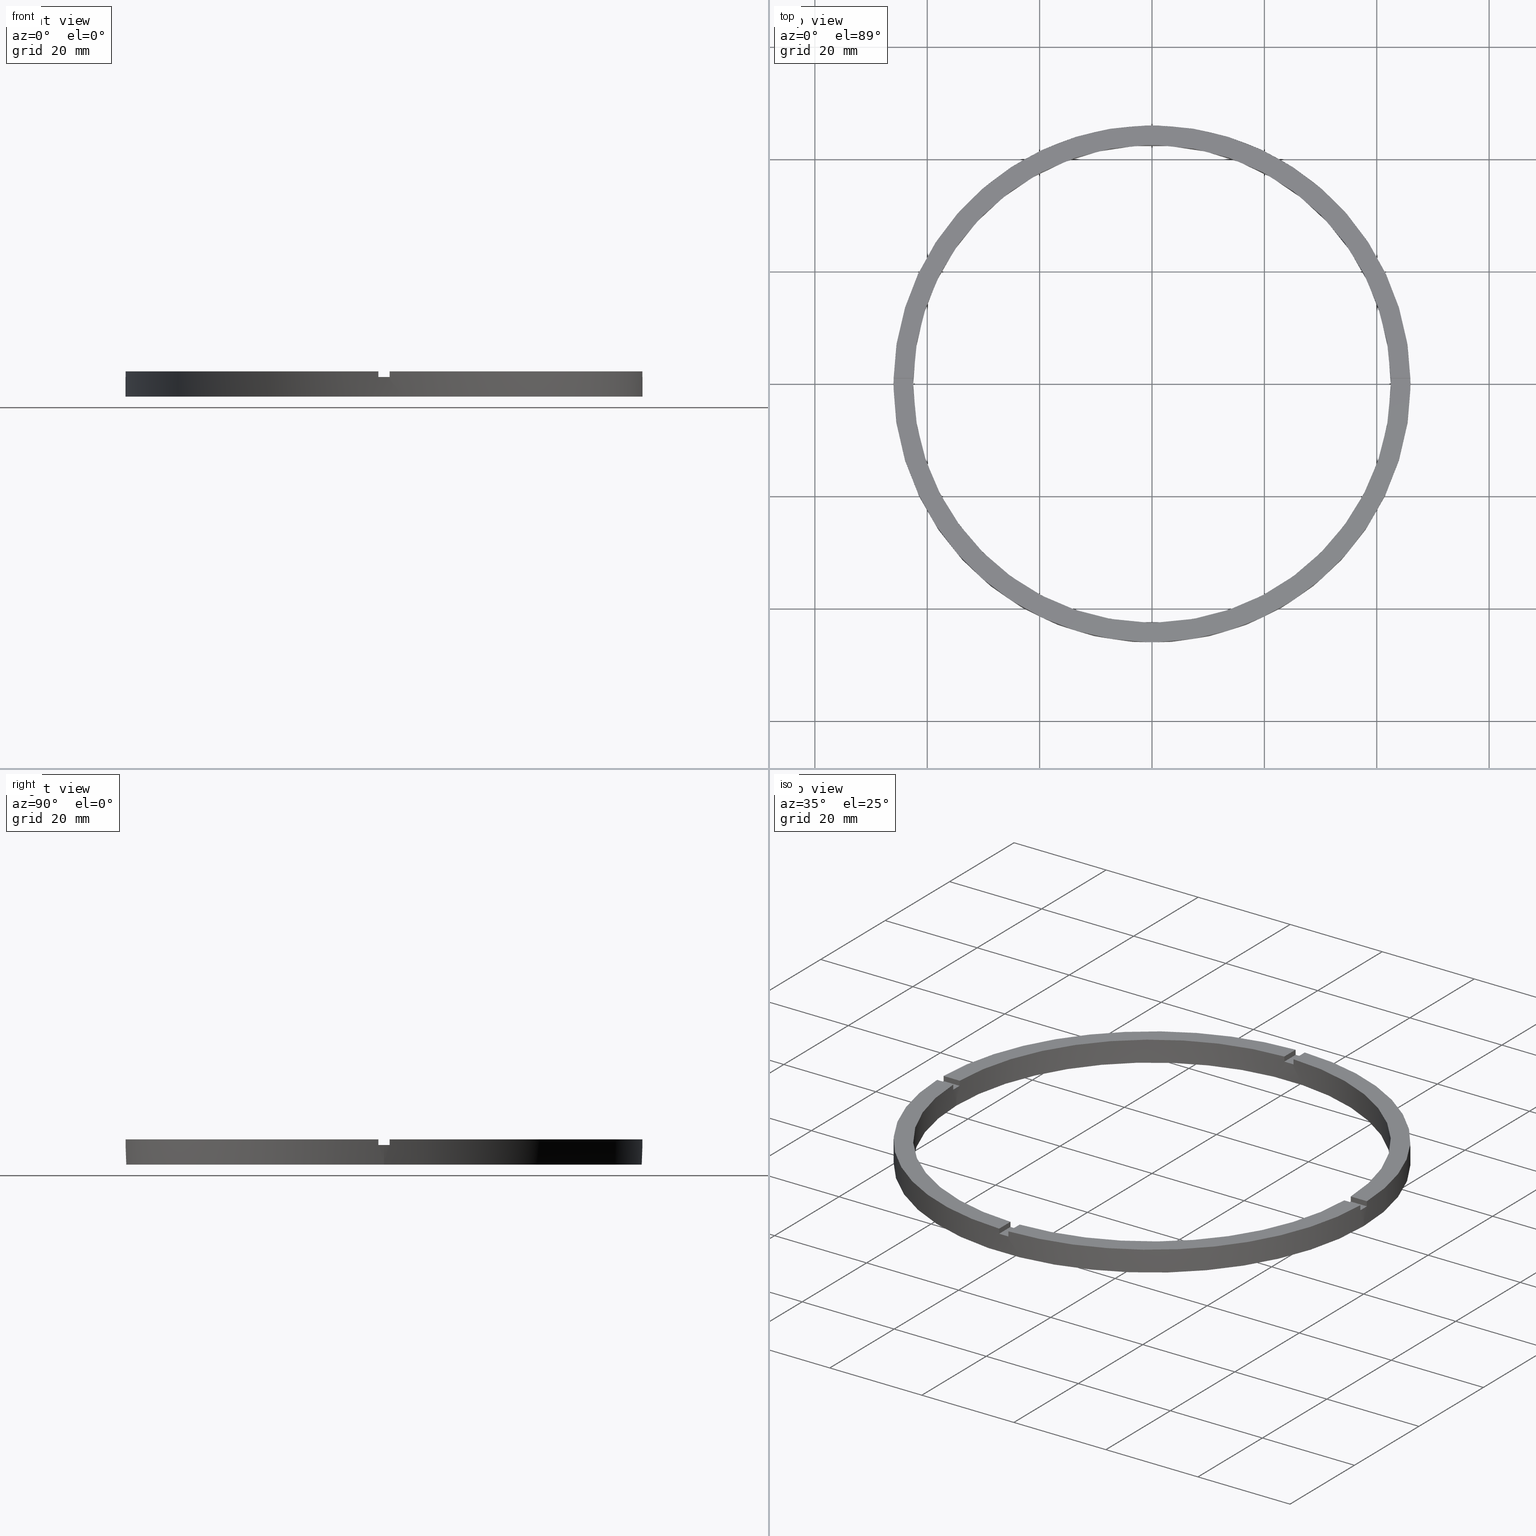
[diagram: canonical four-view strip — front | top / right | iso, engineering-drawing reading convention]
A machine part, canonical four-view strip (front | top / right | iso — engineering-drawing reading convention). The complete STEP part file that produces these views, byte-faithful:
ISO-10303-21;
HEADER;
FILE_DESCRIPTION (( 'STEP AP203' ),
    '1' );
FILE_NAME ('514189.step',
    '2024-12-26T02:46:16',
    ( 'MSI' ),
    ( '' ),
    'SwSTEP 2.0',
    'SolidWorks 2020',
    '' );
FILE_SCHEMA (( 'CONFIG_CONTROL_DESIGN' ));
ENDSEC;

DATA;
#1 = CIRCLE ( 'NONE', #166, 46.00000000000000000 ) ;
#2 = ORIENTED_EDGE ( 'NONE', *, *, #100, .F. ) ;
#3 = LINE ( 'NONE', #771, #769 ) ;
#4 = EDGE_LOOP ( 'NONE', ( #2, #557 ) ) ;
#5 = AXIS2_PLACEMENT_3D ( 'NONE', #574, #190, #415 ) ;
#6 = EDGE_CURVE ( 'NONE', #563, #491, #720, .T. ) ;
#7 = CC_DESIGN_DATE_AND_TIME_ASSIGNMENT ( #66, #605, ( #330 ) ) ;
#8 = ORIENTED_EDGE ( 'NONE', *, *, #451, .T. ) ;
#9 = DIRECTION ( 'NONE',  ( -1.301042606982605074E-16, 1.000000000000000000, 0.000000000000000000 ) ) ;
#10 = ORIENTED_EDGE ( 'NONE', *, *, #729, .F. ) ;
#11 = VERTEX_POINT ( 'NONE', #335 ) ;
#12 = CARTESIAN_POINT ( 'NONE',  ( 0.000000000000000000, 0.000000000000000000, 3.499999999999999556 ) ) ;
#13 = CARTESIAN_POINT ( 'NONE',  ( 0.000000000000000000, 0.000000000000000000, 0.000000000000000000 ) ) ;
#14 = AXIS2_PLACEMENT_3D ( 'NONE', #44, #211, #638 ) ;
#15 = EDGE_LOOP ( 'NONE', ( #481, #432, #734, #174, #170, #514, #721, #530, #206, #214, #464, #547 ) ) ;
#16 = AXIS2_PLACEMENT_3D ( 'NONE', #200, #385, #434 ) ;
#17 = ORIENTED_EDGE ( 'NONE', *, *, #749, .T. ) ;
#18 = CARTESIAN_POINT ( 'NONE',  ( 0.000000000000000000, 0.000000000000000000, 4.500000000000000000 ) ) ;
#19 = ORIENTED_EDGE ( 'NONE', *, *, #408, .T. ) ;
#20 = ORIENTED_EDGE ( 'NONE', *, *, #604, .T. ) ;
#21 = SECURITY_CLASSIFICATION_LEVEL ( 'unclassified' ) ;
#22 = EDGE_CURVE ( 'NONE', #302, #444, #480, .T. ) ;
#23 = VERTEX_POINT ( 'NONE', #419 ) ;
#24 = CARTESIAN_POINT ( 'NONE',  ( -36.00000000000018474, -1.000000000000028200, 3.499999999999999556 ) ) ;
#25 = EDGE_LOOP ( 'NONE', ( #509, #768, #185, #10, #259, #702 ) ) ;
#26 = VERTEX_POINT ( 'NONE', #512 ) ;
#27 = PERSON_AND_ORGANIZATION_ROLE ( 'creator' ) ;
#28 = APPROVAL ( #519, 'δָ��' ) ;
#29 = DIRECTION ( 'NONE',  ( -1.000000000000000000, -6.505213034913025371E-17, -0.000000000000000000 ) ) ;
#30 = DIRECTION ( 'NONE',  ( 0.000000000000000000, 0.000000000000000000, 1.000000000000000000 ) ) ;
#31 = VERTEX_POINT ( 'NONE', #526 ) ;
#32 = COORDINATED_UNIVERSAL_TIME_OFFSET ( 8, 0, .AHEAD. ) ;
#33 = ADVANCED_FACE ( 'NONE', ( #454 ), #427, .F. ) ;
#34 = CARTESIAN_POINT ( 'NONE',  ( -1.000000000000158540, -42.48823366533375179, 4.500000000000000000 ) ) ;
#35 = PERSON_AND_ORGANIZATION ( #370, #314 ) ;
#36 = VERTEX_POINT ( 'NONE', #619 ) ;
#37 = LOCAL_TIME ( 10, 46, 16.00000000000000000, #32 ) ;
#38 = CALENDAR_DATE ( 2024, 26, 12 ) ;
#39 = DIRECTION ( 'NONE',  ( 1.000000000000000000, 0.000000000000000000, 0.000000000000000000 ) ) ;
#40 = ORIENTED_EDGE ( 'NONE', *, *, #358, .T. ) ;
#41 = EDGE_CURVE ( 'NONE', #220, #280, #225, .T. ) ;
#42 = EDGE_CURVE ( 'NONE', #695, #687, #691, .T. ) ;
#43 = PERSON_AND_ORGANIZATION_ROLE ( 'design_owner' ) ;
#44 = CARTESIAN_POINT ( 'NONE',  ( 0.000000000000000000, 0.000000000000000000, 4.500000000000000000 ) ) ;
#45 = CARTESIAN_POINT ( 'NONE',  ( 42.48823366533375179, -1.000000000000156097, 4.500000000000000000 ) ) ;
#46 = DIRECTION ( 'NONE',  ( -0.000000000000000000, -0.000000000000000000, -1.000000000000000000 ) ) ;
#47 = LOCAL_TIME ( 10, 46, 16.00000000000000000, #67 ) ;
#48 = COORDINATED_UNIVERSAL_TIME_OFFSET ( 8, 0, .AHEAD. ) ;
#49 = LOCAL_TIME ( 10, 46, 16.00000000000000000, #48 ) ;
#50 = CALENDAR_DATE ( 2024, 26, 12 ) ;
#51 = DIRECTION ( 'NONE',  ( 1.000000000000000000, 6.505213034913025371E-17, 0.000000000000000000 ) ) ;
#52 = AXIS2_PLACEMENT_3D ( 'NONE', #253, #359, #714 ) ;
#53 = AXIS2_PLACEMENT_3D ( 'NONE', #565, #123, #349 ) ;
#54 = APPROVAL_DATE_TIME ( #566, #397 ) ;
#55 = EDGE_CURVE ( 'NONE', #556, #199, #435, .T. ) ;
#56 = DIRECTION ( 'NONE',  ( -1.000000000000000000, -1.951563910473907735E-16, 0.000000000000000000 ) ) ;
#57 = CARTESIAN_POINT ( 'NONE',  ( 45.98912915026767934, 0.9999999999998441247, 3.499999999999999556 ) ) ;
#58 = DIRECTION ( 'NONE',  ( 1.000000000000000000, 0.000000000000000000, 0.000000000000000000 ) ) ;
#59 = AXIS2_PLACEMENT_3D ( 'NONE', #357, #707, #9 ) ;
#60 = DIRECTION ( 'NONE',  ( -1.000000000000000000, 0.000000000000000000, 0.000000000000000000 ) ) ;
#61 = CARTESIAN_POINT ( 'NONE',  ( 42.48823366533375889, 0.9999999999998439026, 4.500000000000000000 ) ) ;
#62 = CARTESIAN_POINT ( 'NONE',  ( 0.000000000000000000, 0.000000000000000000, 0.000000000000000000 ) ) ;
#63 = AXIS2_PLACEMENT_3D ( 'NONE', #283, #46, #389 ) ;
#64 = PERSON_AND_ORGANIZATION ( #370, #314 ) ;
#65 = APPROVAL_DATE_TIME ( #580, #28 ) ;
#66 = DATE_AND_TIME ( #584, #581 ) ;
#67 = COORDINATED_UNIVERSAL_TIME_OFFSET ( 8, 0, .AHEAD. ) ;
#68 = EDGE_CURVE ( 'NONE', #690, #423, #693, .T. ) ;
#69 = CARTESIAN_POINT ( 'NONE',  ( 46.00000000000000000, 5.633375276077824704E-15, 0.000000000000000000 ) ) ;
#70 = DIRECTION ( 'NONE',  ( -0.000000000000000000, -0.000000000000000000, -1.000000000000000000 ) ) ;
#71 = DIRECTION ( 'NONE',  ( 1.000000000000000000, 0.000000000000000000, 0.000000000000000000 ) ) ;
#72 = EDGE_CURVE ( 'NONE', #764, #687, #484, .T. ) ;
#73 = DIRECTION ( 'NONE',  ( 0.000000000000000000, 0.000000000000000000, 1.000000000000000000 ) ) ;
#74 = EDGE_CURVE ( 'NONE', #682, #36, #197, .T. ) ;
#75 = DIRECTION ( 'NONE',  ( 0.000000000000000000, 0.000000000000000000, 1.000000000000000000 ) ) ;
#76 = DIRECTION ( 'NONE',  ( 1.000000000000000000, 0.000000000000000000, 0.000000000000000000 ) ) ;
#77 = CARTESIAN_POINT ( 'NONE',  ( 0.9999999999999737987, 36.00000000000000000, 3.499999999999999556 ) ) ;
#78 = AXIS2_PLACEMENT_3D ( 'NONE', #726, #363, #71 ) ;
#79 = AXIS2_PLACEMENT_3D ( 'NONE', #85, #136, #742 ) ;
#80 = CC_DESIGN_APPROVAL ( #159, ( #330 ) ) ;
#81 = CARTESIAN_POINT ( 'NONE',  ( 46.00000000000000000, 5.633375276077824704E-15, 3.499999999999999556 ) ) ;
#82 = ADVANCED_FACE ( 'NONE', ( #717 ), #286, .T. ) ;
#83 = PERSON_AND_ORGANIZATION_ROLE ( 'classification_officer' ) ;
#84 = EDGE_CURVE ( 'NONE', #213, #563, #741, .T. ) ;
#85 = CARTESIAN_POINT ( 'NONE',  ( 0.000000000000000000, 0.000000000000000000, 4.500000000000000000 ) ) ;
#86 = DIRECTION ( 'NONE',  ( 1.000000000000000000, 0.000000000000000000, -0.000000000000000000 ) ) ;
#87 = ADVANCED_FACE ( 'NONE', ( #182 ), #355, .F. ) ;
#88 = CC_DESIGN_APPROVAL ( #397, ( #591 ) ) ;
#89 = AXIS2_PLACEMENT_3D ( 'NONE', #173, #364, #401 ) ;
#90 = FACE_OUTER_BOUND ( 'NONE', #737, .T. ) ;
#91 = DIRECTION ( 'NONE',  ( 1.000000000000000000, 1.951563910473907735E-16, 0.000000000000000000 ) ) ;
#92 = LINE ( 'NONE', #331, #343 ) ;
#93 = APPROVAL_ROLE ( '' ) ;
#94 = ADVANCED_FACE ( 'NONE', ( #697 ), #696, .F. ) ;
#95 = CARTESIAN_POINT ( 'NONE',  ( 0.000000000000000000, 0.000000000000000000, 0.000000000000000000 ) ) ;
#96 = EDGE_CURVE ( 'NONE', #295, #36, #179, .T. ) ;
#97 = EDGE_CURVE ( 'NONE', #279, #544, #700, .T. ) ;
#98 = CARTESIAN_POINT ( 'NONE',  ( -46.00000000000000000, 0.000000000000000000, 0.000000000000000000 ) ) ;
#99 = CARTESIAN_POINT ( 'NONE',  ( 35.99999999999999289, -1.000000000000156541, 3.499999999999999556 ) ) ;
#100 = EDGE_CURVE ( 'NONE', #544, #279, #443, .T. ) ;
#101 = CARTESIAN_POINT ( 'NONE',  ( 0.000000000000000000, 0.000000000000000000, 3.499999999999999556 ) ) ;
#102 = EDGE_CURVE ( 'NONE', #302, #747, #701, .T. ) ;
#103 = CARTESIAN_POINT ( 'NONE',  ( -1.000000000000157874, -45.98912915026767223, 4.500000000000000000 ) ) ;
#104 = CARTESIAN_POINT ( 'NONE',  ( -45.98912915026767223, 0.9999999999999699130, 4.500000000000000000 ) ) ;
#105 = AXIS2_PLACEMENT_3D ( 'NONE', #296, #392, #453 ) ;
#106 = DIRECTION ( 'NONE',  ( 1.000000000000000000, 0.000000000000000000, 0.000000000000000000 ) ) ;
#107 = VECTOR ( 'NONE', #599, 1000.000000000000000 ) ;
#108 = CARTESIAN_POINT ( 'NONE',  ( -42.48823366533375889, 0.9999999999999705791, 4.500000000000000000 ) ) ;
#109 = AXIS2_PLACEMENT_3D ( 'NONE', #243, #303, #573 ) ;
#110 = LINE ( 'NONE', #154, #616 ) ;
#111 = DIRECTION ( 'NONE',  ( 0.000000000000000000, 0.000000000000000000, 1.000000000000000000 ) ) ;
#112 = DIRECTION ( 'NONE',  ( -0.000000000000000000, 0.000000000000000000, 1.000000000000000000 ) ) ;
#113 = CYLINDRICAL_SURFACE ( 'NONE', #156, 46.00000000000000000 ) ;
#114 = CIRCLE ( 'NONE', #78, 42.50000000000000711 ) ;
#115 = VECTOR ( 'NONE', #781, 1000.000000000000000 ) ;
#116 = DIRECTION ( 'NONE',  ( 1.000000000000000000, 1.951563910473907735E-16, -0.000000000000000000 ) ) ;
#117 = FACE_OUTER_BOUND ( 'NONE', #25, .T. ) ;
#118 = PLANE ( 'NONE',  #59 ) ;
#119 = FACE_OUTER_BOUND ( 'NONE', #300, .T. ) ;
#120 = CIRCLE ( 'NONE', #223, 42.50000000000000711 ) ;
#121 = LINE ( 'NONE', #215, #379 ) ;
#122 = AXIS2_PLACEMENT_3D ( 'NONE', #367, #147, #240 ) ;
#123 = DIRECTION ( 'NONE',  ( 0.000000000000000000, 0.000000000000000000, 1.000000000000000000 ) ) ;
#124 = VECTOR ( 'NONE', #235, 1000.000000000000000 ) ;
#125 = LINE ( 'NONE', #399, #382 ) ;
#126 = VECTOR ( 'NONE', #344, 1000.000000000000000 ) ;
#127 = EDGE_CURVE ( 'NONE', #213, #196, #748, .T. ) ;
#128 = DIRECTION ( 'NONE',  ( -0.000000000000000000, -0.000000000000000000, -1.000000000000000000 ) ) ;
#129 = CYLINDRICAL_SURFACE ( 'NONE', #694, 46.00000000000000000 ) ;
#130 = CYLINDRICAL_SURFACE ( 'NONE', #135, 42.50000000000000711 ) ;
#131 = VECTOR ( 'NONE', #70, 1000.000000000000000 ) ;
#132 = MANIFOLD_SOLID_BREP ( '�г�-����1', #708 ) ;
#133 = CARTESIAN_POINT ( 'NONE',  ( 0.9999999999998421263, -45.98912915026767934, 4.500000000000000000 ) ) ;
#134 = CARTESIAN_POINT ( 'NONE',  ( -1.000000000000157874, -45.98912915026767223, 4.500000000000000000 ) ) ;
#135 = AXIS2_PLACEMENT_3D ( 'NONE', #529, #381, #60 ) ;
#136 = DIRECTION ( 'NONE',  ( 0.000000000000000000, 0.000000000000000000, 1.000000000000000000 ) ) ;
#137 = PLANE ( 'NONE',  #270 ) ;
#138 = AXIS2_PLACEMENT_3D ( 'NONE', #442, #394, #626 ) ;
#139 = DIRECTION ( 'NONE',  ( 0.000000000000000000, 0.000000000000000000, 1.000000000000000000 ) ) ;
#140 = CARTESIAN_POINT ( 'NONE',  ( 0.000000000000000000, 0.000000000000000000, 3.499999999999999556 ) ) ;
#141 = EDGE_CURVE ( 'NONE', #461, #540, #746, .T. ) ;
#142 = CARTESIAN_POINT ( 'NONE',  ( -46.00000000000000000, 0.000000000000000000, 3.499999999999999556 ) ) ;
#143 = DIRECTION ( 'NONE',  ( 0.000000000000000000, 0.000000000000000000, 1.000000000000000000 ) ) ;
#144 = ADVANCED_FACE ( 'NONE', ( #232 ), #552, .T. ) ;
#145 = DIRECTION ( 'NONE',  ( 6.505213034913025371E-17, -1.000000000000000000, 0.000000000000000000 ) ) ;
#146 = CARTESIAN_POINT ( 'NONE',  ( 0.000000000000000000, 0.000000000000000000, 4.500000000000000000 ) ) ;
#147 = DIRECTION ( 'NONE',  ( -6.505213034913025371E-17, 1.000000000000000000, 0.000000000000000000 ) ) ;
#148 = CARTESIAN_POINT ( 'NONE',  ( -1.000000000000159206, -36.00000000000017764, 3.499999999999999556 ) ) ;
#149 = EDGE_CURVE ( 'NONE', #444, #544, #237, .T. ) ;
#150 = EDGE_CURVE ( 'NONE', #23, #712, #238, .T. ) ;
#151 = DIRECTION ( 'NONE',  ( 1.000000000000000000, 0.000000000000000000, 0.000000000000000000 ) ) ;
#152 = CARTESIAN_POINT ( 'NONE',  ( -42.48823366533375889, 0.9999999999999705791, 4.500000000000000000 ) ) ;
#153 = CARTESIAN_POINT ( 'NONE',  ( -1.000000000000159206, -36.00000000000017764, 3.499999999999999556 ) ) ;
#154 = CARTESIAN_POINT ( 'NONE',  ( 0.9999999999999737987, 45.98912915026767223, 4.500000000000000000 ) ) ;
#155 = CARTESIAN_POINT ( 'NONE',  ( -45.98912915026767223, -1.000000000000030198, 4.500000000000000000 ) ) ;
#156 = AXIS2_PLACEMENT_3D ( 'NONE', #606, #485, #350 ) ;
#157 = AXIS2_PLACEMENT_3D ( 'NONE', #13, #311, #361 ) ;
#158 = EDGE_CURVE ( 'NONE', #31, #751, #488, .T. ) ;
#159 = APPROVAL ( #497, 'δָ��' ) ;
#160 = PLANE ( 'NONE',  #52 ) ;
#161 = CARTESIAN_POINT ( 'NONE',  ( 0.000000000000000000, 0.000000000000000000, 4.500000000000000000 ) ) ;
#162 = DIRECTION ( 'NONE',  ( 0.000000000000000000, 0.000000000000000000, 1.000000000000000000 ) ) ;
#163 = DIRECTION ( 'NONE',  ( 0.000000000000000000, 0.000000000000000000, 1.000000000000000000 ) ) ;
#164 = ORIENTED_EDGE ( 'NONE', *, *, #587, .F. ) ;
#165 = VERTEX_POINT ( 'NONE', #705 ) ;
#166 = AXIS2_PLACEMENT_3D ( 'NONE', #312, #670, #533 ) ;
#167 = ORIENTED_EDGE ( 'NONE', *, *, #202, .T. ) ;
#168 = ORIENTED_EDGE ( 'NONE', *, *, #41, .T. ) ;
#169 = AXIS2_PLACEMENT_3D ( 'NONE', #153, #261, #615 ) ;
#170 = ORIENTED_EDGE ( 'NONE', *, *, #22, .F. ) ;
#171 = ORIENTED_EDGE ( 'NONE', *, *, #400, .F. ) ;
#172 = VERTEX_POINT ( 'NONE', #81 ) ;
#173 = CARTESIAN_POINT ( 'NONE',  ( 0.000000000000000000, 0.000000000000000000, 0.000000000000000000 ) ) ;
#174 = ORIENTED_EDGE ( 'NONE', *, *, #149, .F. ) ;
#175 = ORIENTED_EDGE ( 'NONE', *, *, #673, .F. ) ;
#176 = ORIENTED_EDGE ( 'NONE', *, *, #451, .F. ) ;
#177 = ORIENTED_EDGE ( 'NONE', *, *, #319, .T. ) ;
#178 = EDGE_LOOP ( 'NONE', ( #546, #470, #521, #428 ) ) ;
#179 = CIRCLE ( 'NONE', #668, 42.50000000000000711 ) ;
#180 = DIRECTION ( 'NONE',  ( 0.000000000000000000, 0.000000000000000000, 1.000000000000000000 ) ) ;
#181 = EDGE_LOOP ( 'NONE', ( #440, #559, #730, #40 ) ) ;
#182 = FACE_OUTER_BOUND ( 'NONE', #216, .T. ) ;
#183 = ORIENTED_EDGE ( 'NONE', *, *, #621, .F. ) ;
#184 = ORIENTED_EDGE ( 'NONE', *, *, #541, .T. ) ;
#185 = ORIENTED_EDGE ( 'NONE', *, *, #150, .T. ) ;
#186 = ORIENTED_EDGE ( 'NONE', *, *, #597, .F. ) ;
#187 = ORIENTED_EDGE ( 'NONE', *, *, #68, .F. ) ;
#188 = CARTESIAN_POINT ( 'NONE',  ( -1.000000000000026201, 45.98912915026767223, 4.500000000000000000 ) ) ;
#189 = ORIENTED_EDGE ( 'NONE', *, *, #429, .F. ) ;
#190 = DIRECTION ( 'NONE',  ( -1.000000000000000000, 0.000000000000000000, 0.000000000000000000 ) ) ;
#191 = ORIENTED_EDGE ( 'NONE', *, *, #74, .T. ) ;
#192 = ORIENTED_EDGE ( 'NONE', *, *, #102, .F. ) ;
#193 = VERTEX_POINT ( 'NONE', #133 ) ;
#194 = ORIENTED_EDGE ( 'NONE', *, *, #658, .T. ) ;
#195 = ADVANCED_FACE ( 'NONE', ( #489 ), #307, .T. ) ;
#196 = VERTEX_POINT ( 'NONE', #579 ) ;
#197 = LINE ( 'NONE', #45, #458 ) ;
#198 = EDGE_CURVE ( 'NONE', #220, #695, #236, .T. ) ;
#199 = VERTEX_POINT ( 'NONE', #34 ) ;
#200 = CARTESIAN_POINT ( 'NONE',  ( 0.000000000000000000, 0.000000000000000000, 3.499999999999999556 ) ) ;
#201 = ORIENTED_EDGE ( 'NONE', *, *, #258, .F. ) ;
#202 = EDGE_CURVE ( 'NONE', #193, #455, #753, .T. ) ;
#203 = ORIENTED_EDGE ( 'NONE', *, *, #298, .T. ) ;
#204 = ORIENTED_EDGE ( 'NONE', *, *, #568, .F. ) ;
#205 = CARTESIAN_POINT ( 'NONE',  ( 45.98912915026767934, 0.9999999999998441247, 4.500000000000000000 ) ) ;
#206 = ORIENTED_EDGE ( 'NONE', *, *, #42, .F. ) ;
#207 = ORIENTED_EDGE ( 'NONE', *, *, #621, .T. ) ;
#208 = EDGE_LOOP ( 'NONE', ( #233, #775, #201, #472, #704, #168, #227, #460, #518, #19, #8, #437 ) ) ;
#209 = ORIENTED_EDGE ( 'NONE', *, *, #614, .F. ) ;
#210 = ADVANCED_FACE ( 'NONE', ( #90 ), #515, .F. ) ;
#211 = DIRECTION ( 'NONE',  ( 0.000000000000000000, 0.000000000000000000, 1.000000000000000000 ) ) ;
#212 = ORIENTED_EDGE ( 'NONE', *, *, #631, .T. ) ;
#213 = VERTEX_POINT ( 'NONE', #205 ) ;
#214 = ORIENTED_EDGE ( 'NONE', *, *, #230, .T. ) ;
#215 = CARTESIAN_POINT ( 'NONE',  ( -1.000000000000026201, 42.48823366533375179, 4.500000000000000000 ) ) ;
#216 = EDGE_LOOP ( 'NONE', ( #275, #219, #177, #499 ) ) ;
#217 = ORIENTED_EDGE ( 'NONE', *, *, #273, .F. ) ;
#218 = ORIENTED_EDGE ( 'NONE', *, *, #587, .T. ) ;
#219 = ORIENTED_EDGE ( 'NONE', *, *, #418, .T. ) ;
#220 = VERTEX_POINT ( 'NONE', #371 ) ;
#221 = PLANE ( 'NONE',  #14 ) ;
#222 = ORIENTED_EDGE ( 'NONE', *, *, #141, .F. ) ;
#223 = AXIS2_PLACEMENT_3D ( 'NONE', #95, #445, #39 ) ;
#224 = AXIS2_PLACEMENT_3D ( 'NONE', #18, #75, #325 ) ;
#225 = CIRCLE ( 'NONE', #722, 42.50000000000000711 ) ;
#226 = ADVANCED_FACE ( 'NONE', ( #612 ), #348, .F. ) ;
#227 = ORIENTED_EDGE ( 'NONE', *, *, #483, .F. ) ;
#228 = CARTESIAN_POINT ( 'NONE',  ( -36.00000000000018474, 0.9999999999999718003, 3.499999999999999556 ) ) ;
#229 = ORIENTED_EDGE ( 'NONE', *, *, #393, .F. ) ;
#230 = EDGE_CURVE ( 'NONE', #695, #196, #110, .T. ) ;
#231 = ORIENTED_EDGE ( 'NONE', *, *, #733, .F. ) ;
#232 = FACE_OUTER_BOUND ( 'NONE', #247, .T. ) ;
#233 = ORIENTED_EDGE ( 'NONE', *, *, #658, .F. ) ;
#234 = VECTOR ( 'NONE', #128, 1000.000000000000000 ) ;
#235 = DIRECTION ( 'NONE',  ( 0.000000000000000000, 0.000000000000000000, 1.000000000000000000 ) ) ;
#236 = LINE ( 'NONE', #624, #752 ) ;
#237 = LINE ( 'NONE', #654, #234 ) ;
#238 = LINE ( 'NONE', #24, #495 ) ;
#239 = PRODUCT_DEFINITION_FORMATION_WITH_SPECIFIED_SOURCE ( '�κ�', '', #416, .NOT_KNOWN. ) ;
#240 = DIRECTION ( 'NONE',  ( -1.000000000000000000, -6.505213034913025371E-17, 0.000000000000000000 ) ) ;
#241 = CARTESIAN_POINT ( 'NONE',  ( 42.48823366533375889, 0.9999999999998439026, 3.499999999999999556 ) ) ;
#242 = ORIENTED_EDGE ( 'NONE', *, *, #576, .F. ) ;
#243 = CARTESIAN_POINT ( 'NONE',  ( 0.000000000000000000, 0.000000000000000000, 3.499999999999999556 ) ) ;
#244 = FACE_OUTER_BOUND ( 'NONE', #739, .T. ) ;
#245 = CARTESIAN_POINT ( 'NONE',  ( -1.000000000000159206, -36.00000000000017764, 4.500000000000000000 ) ) ;
#246 = VECTOR ( 'NONE', #531, 1000.000000000000000 ) ;
#247 = EDGE_LOOP ( 'NONE', ( #446, #184, #692, #452 ) ) ;
#248 = FACE_OUTER_BOUND ( 'NONE', #459, .T. ) ;
#249 = CARTESIAN_POINT ( 'NONE',  ( -1.000000000000026201, 42.48823366533375179, 3.499999999999999556 ) ) ;
#250 = ORIENTED_EDGE ( 'NONE', *, *, #400, .T. ) ;
#251 = DIRECTION ( 'NONE',  ( 1.000000000000000000, 0.000000000000000000, 0.000000000000000000 ) ) ;
#252 = CIRCLE ( 'NONE', #138, 42.50000000000000711 ) ;
#253 = CARTESIAN_POINT ( 'NONE',  ( 0.000000000000000000, 0.000000000000000000, 0.000000000000000000 ) ) ;
#254 = DIRECTION ( 'NONE',  ( 1.000000000000000000, -0.000000000000000000, 0.000000000000000000 ) ) ;
#255 = CIRCLE ( 'NONE', #516, 46.00000000000000000 ) ;
#256 = ORIENTED_EDGE ( 'NONE', *, *, #55, .T. ) ;
#257 = DIRECTION ( 'NONE',  ( 1.000000000000000000, 0.000000000000000000, 0.000000000000000000 ) ) ;
#258 = EDGE_CURVE ( 'NONE', #461, #491, #627, .T. ) ;
#259 = ORIENTED_EDGE ( 'NONE', *, *, #408, .F. ) ;
#260 = FACE_OUTER_BOUND ( 'NONE', #536, .T. ) ;
#261 = DIRECTION ( 'NONE',  ( -1.000000000000000000, -1.301042606982605074E-16, 0.000000000000000000 ) ) ;
#262 = LINE ( 'NONE', #309, #268 ) ;
#263 = ORIENTED_EDGE ( 'NONE', *, *, #511, .F. ) ;
#264 = CIRCLE ( 'NONE', #414, 46.00000000000000000 ) ;
#265 = ORIENTED_EDGE ( 'NONE', *, *, #55, .F. ) ;
#266 = VECTOR ( 'NONE', #304, 1000.000000000000000 ) ;
#267 = PLANE ( 'NONE',  #549 ) ;
#268 = VECTOR ( 'NONE', #447, 1000.000000000000000 ) ;
#269 = ORIENTED_EDGE ( 'NONE', *, *, #358, .F. ) ;
#270 = AXIS2_PLACEMENT_3D ( 'NONE', #646, #623, #672 ) ;
#271 = ORIENTED_EDGE ( 'NONE', *, *, #538, .T. ) ;
#272 = FACE_OUTER_BOUND ( 'NONE', #539, .T. ) ;
#273 = EDGE_CURVE ( 'NONE', #213, #461, #362, .T. ) ;
#274 = CARTESIAN_POINT ( 'NONE',  ( 0.9999999999998421263, -45.98912915026767934, 4.500000000000000000 ) ) ;
#275 = ORIENTED_EDGE ( 'NONE', *, *, #198, .F. ) ;
#276 = LINE ( 'NONE', #285, #773 ) ;
#277 = ORIENTED_EDGE ( 'NONE', *, *, #150, .F. ) ;
#278 = CC_DESIGN_PERSON_AND_ORGANIZATION_ASSIGNMENT ( #35, #43, ( #416 ) ) ;
#279 = VERTEX_POINT ( 'NONE', #69 ) ;
#280 = VERTEX_POINT ( 'NONE', #249 ) ;
#281 = ORIENTED_EDGE ( 'NONE', *, *, #429, .T. ) ;
#282 = ORIENTED_EDGE ( 'NONE', *, *, #614, .T. ) ;
#283 = CARTESIAN_POINT ( 'NONE',  ( 0.000000000000000000, 0.000000000000000000, 4.500000000000000000 ) ) ;
#284 = EDGE_CURVE ( 'NONE', #682, #728, #625, .T. ) ;
#285 = CARTESIAN_POINT ( 'NONE',  ( -36.00000000000018474, 0.9999999999999718003, 3.499999999999999556 ) ) ;
#286 = PLANE ( 'NONE',  #16 ) ;
#287 = DIRECTION ( 'NONE',  ( 0.000000000000000000, 0.000000000000000000, 1.000000000000000000 ) ) ;
#288 = CARTESIAN_POINT ( 'NONE',  ( 45.98912915026767223, -1.000000000000155875, 4.500000000000000000 ) ) ;
#289 = CARTESIAN_POINT ( 'NONE',  ( -36.00000000000018474, -1.000000000000028200, 3.499999999999999556 ) ) ;
#290 = CARTESIAN_POINT ( 'NONE',  ( 0.9999999999999737987, 45.98912915026767223, 3.499999999999999556 ) ) ;
#291 = CARTESIAN_POINT ( 'NONE',  ( 0.9999999999998421263, -45.98912915026767934, 3.499999999999999556 ) ) ;
#292 = DIRECTION ( 'NONE',  ( -1.000000000000000000, -1.951563910473907735E-16, 0.000000000000000000 ) ) ;
#293 = VERTEX_POINT ( 'NONE', #356 ) ;
#294 = CALENDAR_DATE ( 2024, 26, 12 ) ;
#295 = VERTEX_POINT ( 'NONE', #308 ) ;
#296 = CARTESIAN_POINT ( 'NONE',  ( 0.000000000000000000, 0.000000000000000000, 4.500000000000000000 ) ) ;
#297 = PERSON_AND_ORGANIZATION ( #370, #314 ) ;
#298 = EDGE_CURVE ( 'NONE', #556, #712, #366, .T. ) ;
#299 = DIRECTION ( 'NONE',  ( -0.000000000000000000, 0.000000000000000000, 1.000000000000000000 ) ) ;
#300 = EDGE_LOOP ( 'NONE', ( #426, #479, #475, #505 ) ) ;
#301 = ADVANCED_FACE ( 'NONE', ( #347 ), #113, .T. ) ;
#302 = VERTEX_POINT ( 'NONE', #601 ) ;
#303 = DIRECTION ( 'NONE',  ( 0.000000000000000000, -0.000000000000000000, 1.000000000000000000 ) ) ;
#304 = DIRECTION ( 'NONE',  ( 1.000000000000000000, 1.951563910473907735E-16, -0.000000000000000000 ) ) ;
#305 = DIRECTION ( 'NONE',  ( -1.951563910473907735E-16, 1.000000000000000000, 0.000000000000000000 ) ) ;
#306 = AXIS2_PLACEMENT_3D ( 'NONE', #228, #305, #292 ) ;
#307 = PLANE ( 'NONE',  #354 ) ;
#308 = CARTESIAN_POINT ( 'NONE',  ( 0.9999999999998414602, -42.48823366533375889, 4.500000000000000000 ) ) ;
#309 = CARTESIAN_POINT ( 'NONE',  ( -36.00000000000018474, 0.9999999999999718003, 4.500000000000000000 ) ) ;
#310 = COORDINATED_UNIVERSAL_TIME_OFFSET ( 8, 0, .AHEAD. ) ;
#311 = DIRECTION ( 'NONE',  ( 0.000000000000000000, 0.000000000000000000, 1.000000000000000000 ) ) ;
#312 = CARTESIAN_POINT ( 'NONE',  ( 0.000000000000000000, 0.000000000000000000, 4.500000000000000000 ) ) ;
#313 = CC_DESIGN_APPROVAL ( #28, ( #239 ) ) ;
#314 = ORGANIZATION ( 'δָ��', 'δָ��', '' ) ;
#315 = DIRECTION ( 'NONE',  ( 0.000000000000000000, 0.000000000000000000, 1.000000000000000000 ) ) ;
#316 = CARTESIAN_POINT ( 'NONE',  ( 45.98912915026767223, -1.000000000000155875, 4.500000000000000000 ) ) ;
#317 = PERSON_AND_ORGANIZATION ( #370, #314 ) ;
#318 = DIRECTION ( 'NONE',  ( 1.000000000000000000, 0.000000000000000000, 0.000000000000000000 ) ) ;
#319 = EDGE_CURVE ( 'NONE', #540, #196, #374, .T. ) ;
#320 = CALENDAR_DATE ( 2024, 26, 12 ) ;
#321 = PERSON_AND_ORGANIZATION ( #370, #314 ) ;
#322 = EDGE_CURVE ( 'NONE', #444, #23, #629, .T. ) ;
#323 = COORDINATED_UNIVERSAL_TIME_OFFSET ( 8, 0, .AHEAD. ) ;
#324 = PERSON_AND_ORGANIZATION ( #370, #314 ) ;
#325 = DIRECTION ( 'NONE',  ( 1.000000000000000000, 0.000000000000000000, 0.000000000000000000 ) ) ;
#326 = PERSON_AND_ORGANIZATION ( #370, #314 ) ;
#327 = APPROVAL_ROLE ( '' ) ;
#328 = EDGE_CURVE ( 'NONE', #293, #473, #114, .T. ) ;
#329 = PERSON_AND_ORGANIZATION_ROLE ( 'creator' ) ;
#330 = SECURITY_CLASSIFICATION ( '', '', #21 ) ;
#331 = CARTESIAN_POINT ( 'NONE',  ( 0.9999999999998414602, -42.48823366533375889, 4.500000000000000000 ) ) ;
#332 = AXIS2_PLACEMENT_3D ( 'NONE', #62, #346, #467 ) ;
#333 = AXIS2_PLACEMENT_3D ( 'NONE', #77, #254, #558 ) ;
#334 = CARTESIAN_POINT ( 'NONE',  ( -42.48823366533375179, -1.000000000000029532, 3.499999999999999556 ) ) ;
#335 = CARTESIAN_POINT ( 'NONE',  ( -1.000000000000026201, 42.48823366533375179, 4.500000000000000000 ) ) ;
#336 = DIRECTION ( 'NONE',  ( 1.301042606982605074E-16, -1.000000000000000000, 0.000000000000000000 ) ) ;
#337 = PLANE ( 'NONE',  #306 ) ;
#338 = ADVANCED_FACE ( 'NONE', ( #372, #635 ), #160, .F. ) ;
#339 = CARTESIAN_POINT ( 'NONE',  ( 42.50000000000000711, 5.204748896376252474E-15, 3.499999999999999556 ) ) ;
#340 = CARTESIAN_POINT ( 'NONE',  ( -1.000000000000157874, -45.98912915026767223, 3.499999999999999556 ) ) ;
#341 = ADVANCED_FACE ( 'NONE', ( #117 ), #490, .T. ) ;
#342 = DIRECTION ( 'NONE',  ( 0.000000000000000000, 0.000000000000000000, 1.000000000000000000 ) ) ;
#343 = VECTOR ( 'NONE', #376, 1000.000000000000000 ) ;
#344 = DIRECTION ( 'NONE',  ( 1.301042606982605074E-16, -1.000000000000000000, 0.000000000000000000 ) ) ;
#345 = DIRECTION ( 'NONE',  ( -0.000000000000000000, -0.000000000000000000, -1.000000000000000000 ) ) ;
#346 = DIRECTION ( 'NONE',  ( 0.000000000000000000, 0.000000000000000000, 1.000000000000000000 ) ) ;
#347 = FACE_OUTER_BOUND ( 'NONE', #15, .T. ) ;
#348 = CYLINDRICAL_SURFACE ( 'NONE', #63, 42.50000000000000711 ) ;
#349 = DIRECTION ( 'NONE',  ( 1.000000000000000000, 0.000000000000000000, 0.000000000000000000 ) ) ;
#350 = DIRECTION ( 'NONE',  ( -1.000000000000000000, 0.000000000000000000, 0.000000000000000000 ) ) ;
#351 = PRODUCT_DEFINITION_SHAPE ( 'NONE', 'NONE',  #591 ) ;
#352 = DIRECTION ( 'NONE',  ( 0.000000000000000000, 0.000000000000000000, 1.000000000000000000 ) ) ;
#353 = AXIS2_PLACEMENT_3D ( 'NONE', #368, #180, #420 ) ;
#354 = AXIS2_PLACEMENT_3D ( 'NONE', #161, #315, #430 ) ;
#355 = PLANE ( 'NONE',  #333 ) ;
#356 = CARTESIAN_POINT ( 'NONE',  ( -1.000000000000158540, -42.48823366533375179, 3.499999999999999556 ) ) ;
#357 = CARTESIAN_POINT ( 'NONE',  ( 0.9999999999998409050, -36.00000000000017764, 3.499999999999999556 ) ) ;
#358 = EDGE_CURVE ( 'NONE', #193, #471, #636, .T. ) ;
#359 = DIRECTION ( 'NONE',  ( 0.000000000000000000, 0.000000000000000000, 1.000000000000000000 ) ) ;
#360 = AXIS2_PLACEMENT_3D ( 'NONE', #289, #754, #91 ) ;
#361 = DIRECTION ( 'NONE',  ( 1.000000000000000000, 0.000000000000000000, 0.000000000000000000 ) ) ;
#362 = LINE ( 'NONE', #651, #115 ) ;
#363 = DIRECTION ( 'NONE',  ( -0.000000000000000000, 0.000000000000000000, 1.000000000000000000 ) ) ;
#364 = DIRECTION ( 'NONE',  ( 0.000000000000000000, 0.000000000000000000, 1.000000000000000000 ) ) ;
#365 = VECTOR ( 'NONE', #410, 1000.000000000000000 ) ;
#366 = LINE ( 'NONE', #405, #365 ) ;
#367 = CARTESIAN_POINT ( 'NONE',  ( 35.99999999999999289, 0.9999999999998434586, 3.499999999999999556 ) ) ;
#368 = CARTESIAN_POINT ( 'NONE',  ( 0.000000000000000000, 0.000000000000000000, 4.500000000000000000 ) ) ;
#369 = VECTOR ( 'NONE', #655, 1000.000000000000000 ) ;
#370 = PERSON ( 'δָ��', 'δָ��', 'δָ��', ('δָ��'), ('δָ��'), ('δָ��') ) ;
#371 = CARTESIAN_POINT ( 'NONE',  ( 0.9999999999999737987, 42.48823366533375889, 3.499999999999999556 ) ) ;
#372 = FACE_OUTER_BOUND ( 'NONE', #4, .T. ) ;
#373 = ADVANCED_FACE ( 'NONE', ( #119 ), #412, .F. ) ;
#374 = LINE ( 'NONE', #402, #369 ) ;
#375 = DIRECTION ( 'NONE',  ( 1.000000000000000000, 0.000000000000000000, 0.000000000000000000 ) ) ;
#376 = DIRECTION ( 'NONE',  ( -0.000000000000000000, -0.000000000000000000, -1.000000000000000000 ) ) ;
#377 = CIRCLE ( 'NONE', #450, 42.50000000000000711 ) ;
#378 = MECHANICAL_CONTEXT ( 'NONE', #669, 'mechanical' ) ;
#379 = VECTOR ( 'NONE', #762, 1000.000000000000000 ) ;
#380 = LINE ( 'NONE', #245, #643 ) ;
#381 = DIRECTION ( 'NONE',  ( -0.000000000000000000, -0.000000000000000000, -1.000000000000000000 ) ) ;
#382 = VECTOR ( 'NONE', #51, 1000.000000000000000 ) ;
#383 = DIRECTION ( 'NONE',  ( -0.000000000000000000, -0.000000000000000000, -1.000000000000000000 ) ) ;
#384 = FACE_OUTER_BOUND ( 'NONE', #181, .T. ) ;
#385 = DIRECTION ( 'NONE',  ( 0.000000000000000000, 0.000000000000000000, 1.000000000000000000 ) ) ;
#386 = VECTOR ( 'NONE', #287, 1000.000000000000000 ) ;
#387 = CARTESIAN_POINT ( 'NONE',  ( -42.48823366533375179, -1.000000000000029532, 4.500000000000000000 ) ) ;
#388 =( NAMED_UNIT ( * ) PLANE_ANGLE_UNIT ( ) SI_UNIT ( $, .RADIAN. ) );
#389 = DIRECTION ( 'NONE',  ( -1.000000000000000000, 0.000000000000000000, 0.000000000000000000 ) ) ;
#390 = LINE ( 'NONE', #148, #126 ) ;
#391 = LINE ( 'NONE', #688, #640 ) ;
#392 = DIRECTION ( 'NONE',  ( 0.000000000000000000, 0.000000000000000000, 1.000000000000000000 ) ) ;
#393 = EDGE_CURVE ( 'NONE', #455, #473, #639, .T. ) ;
#394 = DIRECTION ( 'NONE',  ( 0.000000000000000000, 0.000000000000000000, 1.000000000000000000 ) ) ;
#395 = CARTESIAN_POINT ( 'NONE',  ( 0.000000000000000000, 0.000000000000000000, 3.499999999999999556 ) ) ;
#396 =( LENGTH_UNIT ( ) NAMED_UNIT ( * ) SI_UNIT ( .MILLI., .METRE. ) );
#397 = APPROVAL ( #425, 'δָ��' ) ;
#398 = ADVANCED_FACE ( 'NONE', ( #610 ), #267, .T. ) ;
#399 = CARTESIAN_POINT ( 'NONE',  ( 35.99999999999999289, -1.000000000000156541, 3.499999999999999556 ) ) ;
#400 = EDGE_CURVE ( 'NONE', #295, #473, #92, .T. ) ;
#401 = DIRECTION ( 'NONE',  ( 1.000000000000000000, 0.000000000000000000, 0.000000000000000000 ) ) ;
#402 = CARTESIAN_POINT ( 'NONE',  ( 0.9999999999999737987, 36.00000000000000000, 4.500000000000000000 ) ) ;
#403 = DIRECTION ( 'NONE',  ( -1.301042606982605074E-16, 1.000000000000000000, -0.000000000000000000 ) ) ;
#404 = UNCERTAINTY_MEASURE_WITH_UNIT (LENGTH_MEASURE( 1.000000000000000082E-05 ), #396, 'distance_accuracy_value', 'NONE');
#405 = CARTESIAN_POINT ( 'NONE',  ( -42.48823366533375179, -1.000000000000029532, 4.500000000000000000 ) ) ;
#406 = DIRECTION ( 'NONE',  ( -0.000000000000000000, -0.000000000000000000, -1.000000000000000000 ) ) ;
#407 = EDGE_CURVE ( 'NONE', #751, #31, #120, .T. ) ;
#408 = EDGE_CURVE ( 'NONE', #165, #449, #377, .T. ) ;
#409 = EDGE_LOOP ( 'NONE', ( #431, #222, #217, #779 ) ) ;
#410 = DIRECTION ( 'NONE',  ( -0.000000000000000000, -0.000000000000000000, -1.000000000000000000 ) ) ;
#411 = CARTESIAN_POINT ( 'NONE',  ( 0.000000000000000000, 0.000000000000000000, 4.500000000000000000 ) ) ;
#412 = PLANE ( 'NONE',  #5 ) ;
#413 = DIRECTION ( 'NONE',  ( 0.000000000000000000, 0.000000000000000000, 1.000000000000000000 ) ) ;
#414 = AXIS2_PLACEMENT_3D ( 'NONE', #602, #112, #257 ) ;
#415 = DIRECTION ( 'NONE',  ( 0.000000000000000000, 0.000000000000000000, 1.000000000000000000 ) ) ;
#416 = PRODUCT ( '514189', '514189', '', ( #378 ) ) ;
#417 = ADVANCED_FACE ( 'NONE', ( #648 ), #129, .T. ) ;
#418 = EDGE_CURVE ( 'NONE', #220, #540, #649, .T. ) ;
#419 = CARTESIAN_POINT ( 'NONE',  ( -45.98912915026767223, -1.000000000000030198, 3.499999999999999556 ) ) ;
#420 = DIRECTION ( 'NONE',  ( 1.000000000000000000, 0.000000000000000000, 0.000000000000000000 ) ) ;
#421 = CC_DESIGN_PERSON_AND_ORGANIZATION_ASSIGNMENT ( #64, #27, ( #239 ) ) ;
#422 = ADVANCED_FACE ( 'NONE', ( #650 ), #130, .F. ) ;
#423 = VERTEX_POINT ( 'NONE', #103 ) ;
#424 = EDGE_LOOP ( 'NONE', ( #189, #468, #723, #187 ) ) ;
#425 = APPROVAL_STATUS ( 'not_yet_approved' ) ;
#426 = ORIENTED_EDGE ( 'NONE', *, *, #733, .T. ) ;
#427 = PLANE ( 'NONE',  #122 ) ;
#428 = ORIENTED_EDGE ( 'NONE', *, *, #84, .F. ) ;
#429 = EDGE_CURVE ( 'NONE', #293, #690, #390, .T. ) ;
#430 = DIRECTION ( 'NONE',  ( 1.000000000000000000, 0.000000000000000000, -0.000000000000000000 ) ) ;
#431 = ORIENTED_EDGE ( 'NONE', *, *, #319, .F. ) ;
#432 = ORIENTED_EDGE ( 'NONE', *, *, #595, .T. ) ;
#433 = ORIENTED_EDGE ( 'NONE', *, *, #393, .T. ) ;
#434 = DIRECTION ( 'NONE',  ( 1.000000000000000000, 0.000000000000000000, -0.000000000000000000 ) ) ;
#435 = CIRCLE ( 'NONE', #79, 42.50000000000000711 ) ;
#436 = CARTESIAN_POINT ( 'NONE',  ( 35.99999999999999289, -1.000000000000156541, 4.500000000000000000 ) ) ;
#437 = ORIENTED_EDGE ( 'NONE', *, *, #407, .F. ) ;
#438 = VECTOR ( 'NONE', #493, 1000.000000000000000 ) ;
#439 = ADVANCED_FACE ( 'NONE', ( #384 ), #137, .T. ) ;
#440 = ORIENTED_EDGE ( 'NONE', *, *, #564, .F. ) ;
#441 = ORIENTED_EDGE ( 'NONE', *, *, #729, .T. ) ;
#442 = CARTESIAN_POINT ( 'NONE',  ( 0.000000000000000000, 0.000000000000000000, 3.499999999999999556 ) ) ;
#443 = CIRCLE ( 'NONE', #644, 46.00000000000000000 ) ;
#444 = VERTEX_POINT ( 'NONE', #142 ) ;
#445 = DIRECTION ( 'NONE',  ( 0.000000000000000000, 0.000000000000000000, 1.000000000000000000 ) ) ;
#446 = ORIENTED_EDGE ( 'NONE', *, *, #42, .T. ) ;
#447 = DIRECTION ( 'NONE',  ( -1.000000000000000000, -1.951563910473907735E-16, 0.000000000000000000 ) ) ;
#448 = CARTESIAN_POINT ( 'NONE',  ( 0.000000000000000000, 0.000000000000000000, 3.499999999999999556 ) ) ;
#449 = VERTEX_POINT ( 'NONE', #596 ) ;
#450 = AXIS2_PLACEMENT_3D ( 'NONE', #578, #676, #776 ) ;
#451 = EDGE_CURVE ( 'NONE', #449, #31, #652, .T. ) ;
#452 = ORIENTED_EDGE ( 'NONE', *, *, #198, .T. ) ;
#453 = DIRECTION ( 'NONE',  ( 1.000000000000000000, 0.000000000000000000, 0.000000000000000000 ) ) ;
#454 = FACE_OUTER_BOUND ( 'NONE', #178, .T. ) ;
#455 = VERTEX_POINT ( 'NONE', #291 ) ;
#456 = ORIENTED_EDGE ( 'NONE', *, *, #100, .T. ) ;
#457 = VERTEX_POINT ( 'NONE', #548 ) ;
#458 = VECTOR ( 'NONE', #667, 1000.000000000000000 ) ;
#459 = EDGE_LOOP ( 'NONE', ( #474, #191, #537, #725 ) ) ;
#460 = ORIENTED_EDGE ( 'NONE', *, *, #673, .T. ) ;
#461 = VERTEX_POINT ( 'NONE', #61 ) ;
#462 = AXIS2_PLACEMENT_3D ( 'NONE', #448, #143, #58 ) ;
#463 = ORIENTED_EDGE ( 'NONE', *, *, #664, .T. ) ;
#464 = ORIENTED_EDGE ( 'NONE', *, *, #127, .F. ) ;
#465 = ORIENTED_EDGE ( 'NONE', *, *, #284, .F. ) ;
#466 = CARTESIAN_POINT ( 'NONE',  ( -36.00000000000018474, -1.000000000000028200, 4.500000000000000000 ) ) ;
#467 = DIRECTION ( 'NONE',  ( 1.000000000000000000, 0.000000000000000000, 0.000000000000000000 ) ) ;
#468 = ORIENTED_EDGE ( 'NONE', *, *, #576, .T. ) ;
#469 = AXIS2_PLACEMENT_3D ( 'NONE', #718, #162, #151 ) ;
#470 = ORIENTED_EDGE ( 'NONE', *, *, #258, .T. ) ;
#471 = VERTEX_POINT ( 'NONE', #288 ) ;
#472 = ORIENTED_EDGE ( 'NONE', *, *, #141, .T. ) ;
#473 = VERTEX_POINT ( 'NONE', #677 ) ;
#474 = ORIENTED_EDGE ( 'NONE', *, *, #538, .F. ) ;
#475 = ORIENTED_EDGE ( 'NONE', *, *, #541, .F. ) ;
#476 = EDGE_CURVE ( 'NONE', #193, #295, #391, .T. ) ;
#477 = VECTOR ( 'NONE', #29, 1000.000000000000000 ) ;
#478 = DIRECTION ( 'NONE',  ( 1.000000000000000000, 0.000000000000000000, 0.000000000000000000 ) ) ;
#479 = ORIENTED_EDGE ( 'NONE', *, *, #483, .T. ) ;
#480 = CIRCLE ( 'NONE', #637, 46.00000000000000000 ) ;
#481 = ORIENTED_EDGE ( 'NONE', *, *, #604, .F. ) ;
#482 = VERTEX_POINT ( 'NONE', #108 ) ;
#483 = EDGE_CURVE ( 'NONE', #11, #280, #121, .T. ) ;
#484 = LINE ( 'NONE', #188, #713 ) ;
#485 = DIRECTION ( 'NONE',  ( -0.000000000000000000, -0.000000000000000000, -1.000000000000000000 ) ) ;
#486 = CC_DESIGN_PERSON_AND_ORGANIZATION_ASSIGNMENT ( #326, #732, ( #239 ) ) ;
#487 = DIRECTION ( 'NONE',  ( 0.000000000000000000, 0.000000000000000000, 1.000000000000000000 ) ) ;
#488 = CIRCLE ( 'NONE', #89, 42.50000000000000711 ) ;
#489 = FACE_OUTER_BOUND ( 'NONE', #665, .T. ) ;
#490 = PLANE ( 'NONE',  #661 ) ;
#491 = VERTEX_POINT ( 'NONE', #241 ) ;
#492 = VECTOR ( 'NONE', #569, 1000.000000000000000 ) ;
#493 = DIRECTION ( 'NONE',  ( -0.000000000000000000, -0.000000000000000000, -1.000000000000000000 ) ) ;
#494 = CARTESIAN_POINT ( 'NONE',  ( 0.000000000000000000, 0.000000000000000000, 3.499999999999999556 ) ) ;
#495 = VECTOR ( 'NONE', #116, 1000.000000000000000 ) ;
#496 = DIRECTION ( 'NONE',  ( -0.000000000000000000, -0.000000000000000000, -1.000000000000000000 ) ) ;
#497 = APPROVAL_STATUS ( 'not_yet_approved' ) ;
#498 = EDGE_CURVE ( 'NONE', #165, #482, #642, .T. ) ;
#499 = ORIENTED_EDGE ( 'NONE', *, *, #230, .F. ) ;
#500 = DIRECTION ( 'NONE',  ( -1.301042606982605074E-16, 1.000000000000000000, -0.000000000000000000 ) ) ;
#501 = VECTOR ( 'NONE', #496, 1000.000000000000000 ) ;
#502 = CARTESIAN_POINT ( 'NONE',  ( 0.000000000000000000, 0.000000000000000000, 4.500000000000000000 ) ) ;
#503 = CARTESIAN_POINT ( 'NONE',  ( -45.98912915026767223, 0.9999999999999699130, 4.500000000000000000 ) ) ;
#504 = LINE ( 'NONE', #155, #761 ) ;
#505 = ORIENTED_EDGE ( 'NONE', *, *, #72, .F. ) ;
#506 = CIRCLE ( 'NONE', #603, 42.50000000000000711 ) ;
#507 = ORIENTED_EDGE ( 'NONE', *, *, #158, .F. ) ;
#508 = AXIS2_PLACEMENT_3D ( 'NONE', #140, #299, #600 ) ;
#509 = ORIENTED_EDGE ( 'NONE', *, *, #22, .T. ) ;
#510 = CC_DESIGN_PERSON_AND_ORGANIZATION_ASSIGNMENT ( #321, #83, ( #330 ) ) ;
#511 = EDGE_CURVE ( 'NONE', #199, #423, #380, .T. ) ;
#512 = CARTESIAN_POINT ( 'NONE',  ( -45.98912915026767223, -1.000000000000030198, 4.500000000000000000 ) ) ;
#513 = CIRCLE ( 'NONE', #105, 42.50000000000000711 ) ;
#514 = ORIENTED_EDGE ( 'NONE', *, *, #102, .T. ) ;
#515 = PLANE ( 'NONE',  #360 ) ;
#516 = AXIS2_PLACEMENT_3D ( 'NONE', #411, #487, #251 ) ;
#517 = CIRCLE ( 'NONE', #462, 46.00000000000000000 ) ;
#518 = ORIENTED_EDGE ( 'NONE', *, *, #498, .F. ) ;
#519 = APPROVAL_STATUS ( 'not_yet_approved' ) ;
#520 = DIRECTION ( 'NONE',  ( 0.000000000000000000, -0.000000000000000000, 1.000000000000000000 ) ) ;
#521 = ORIENTED_EDGE ( 'NONE', *, *, #6, .F. ) ;
#522 = LINE ( 'NONE', #436, #246 ) ;
#523 = LINE ( 'NONE', #316, #765 ) ;
#524 = ORIENTED_EDGE ( 'NONE', *, *, #158, .T. ) ;
#525 = LINE ( 'NONE', #466, #266 ) ;
#526 = CARTESIAN_POINT ( 'NONE',  ( -42.50000000000000711, 0.000000000000000000, 0.000000000000000000 ) ) ;
#527 = ORIENTED_EDGE ( 'NONE', *, *, #407, .T. ) ;
#528 = LINE ( 'NONE', #778, #767 ) ;
#529 = CARTESIAN_POINT ( 'NONE',  ( 0.000000000000000000, 0.000000000000000000, 4.500000000000000000 ) ) ;
#530 = ORIENTED_EDGE ( 'NONE', *, *, #72, .T. ) ;
#531 = DIRECTION ( 'NONE',  ( 1.000000000000000000, 6.505213034913025371E-17, 0.000000000000000000 ) ) ;
#532 = LINE ( 'NONE', #555, #501 ) ;
#533 = DIRECTION ( 'NONE',  ( 1.000000000000000000, 0.000000000000000000, 0.000000000000000000 ) ) ;
#534 = ADVANCED_FACE ( 'NONE', ( #647 ), #593, .T. ) ;
#535 = VECTOR ( 'NONE', #782, 1000.000000000000000 ) ;
#536 = EDGE_LOOP ( 'NONE', ( #744, #709, #545, #192 ) ) ;
#537 = ORIENTED_EDGE ( 'NONE', *, *, #564, .T. ) ;
#538 = EDGE_CURVE ( 'NONE', #682, #457, #125, .T. ) ;
#539 = EDGE_LOOP ( 'NONE', ( #263, #265, #164, #463 ) ) ;
#540 = VERTEX_POINT ( 'NONE', #590 ) ;
#541 = EDGE_CURVE ( 'NONE', #687, #280, #645, .T. ) ;
#542 = EDGE_LOOP ( 'NONE', ( #524, #527 ) ) ;
#543 = CARTESIAN_POINT ( 'NONE',  ( 35.99999999999999289, 0.9999999999998434586, 3.499999999999999556 ) ) ;
#544 = VERTEX_POINT ( 'NONE', #98 ) ;
#545 = ORIENTED_EDGE ( 'NONE', *, *, #568, .T. ) ;
#546 = ORIENTED_EDGE ( 'NONE', *, *, #273, .T. ) ;
#547 = ORIENTED_EDGE ( 'NONE', *, *, #84, .T. ) ;
#548 = CARTESIAN_POINT ( 'NONE',  ( 45.98912915026767223, -1.000000000000155875, 3.499999999999999556 ) ) ;
#549 = AXIS2_PLACEMENT_3D ( 'NONE', #502, #30, #86 ) ;
#550 = APPROVAL_DATE_TIME ( #554, #159 ) ;
#551 = ORIENTED_EDGE ( 'NONE', *, *, #749, .F. ) ;
#552 = PLANE ( 'NONE',  #592 ) ;
#553 = CARTESIAN_POINT ( 'NONE',  ( 42.48823366533375889, 0.9999999999998439026, 4.500000000000000000 ) ) ;
#554 = DATE_AND_TIME ( #294, #47 ) ;
#555 = CARTESIAN_POINT ( 'NONE',  ( 42.50000000000000711, 5.204748896376252474E-15, 4.500000000000000000 ) ) ;
#556 = VERTEX_POINT ( 'NONE', #387 ) ;
#557 = ORIENTED_EDGE ( 'NONE', *, *, #97, .F. ) ;
#558 = DIRECTION ( 'NONE',  ( 0.000000000000000000, 0.000000000000000000, -1.000000000000000000 ) ) ;
#559 = ORIENTED_EDGE ( 'NONE', *, *, #96, .F. ) ;
#560 = CC_DESIGN_PERSON_AND_ORGANIZATION_ASSIGNMENT ( #297, #329, ( #591 ) ) ;
#561 = DATE_AND_TIME ( #38, #49 ) ;
#562 = SHAPE_DEFINITION_REPRESENTATION ( #351, #663 ) ;
#563 = VERTEX_POINT ( 'NONE', #57 ) ;
#564 = EDGE_CURVE ( 'NONE', #36, #471, #522, .T. ) ;
#565 = CARTESIAN_POINT ( 'NONE',  ( 0.000000000000000000, 0.000000000000000000, 4.500000000000000000 ) ) ;
#566 = DATE_AND_TIME ( #50, #37 ) ;
#567 = PERSON_AND_ORGANIZATION ( #370, #314 ) ;
#568 = EDGE_CURVE ( 'NONE', #482, #747, #262, .T. ) ;
#569 = DIRECTION ( 'NONE',  ( 0.000000000000000000, 0.000000000000000000, 1.000000000000000000 ) ) ;
#570 = APPROVAL_PERSON_ORGANIZATION ( #567, #28, #93 ) ;
#571 = LOCAL_TIME ( 10, 46, 16.00000000000000000, #310 ) ;
#572 = DATE_TIME_ROLE ( 'creation_date' ) ;
#573 = DIRECTION ( 'NONE',  ( 1.000000000000000000, 0.000000000000000000, 0.000000000000000000 ) ) ;
#574 = CARTESIAN_POINT ( 'NONE',  ( -1.000000000000026201, 36.00000000000000000, 3.499999999999999556 ) ) ;
#575 = APPROVAL_PERSON_ORGANIZATION ( #317, #397, #327 ) ;
#576 = EDGE_CURVE ( 'NONE', #293, #199, #528, .T. ) ;
#577 = APPLICATION_PROTOCOL_DEFINITION ( 'international standard', 'config_control_design', 1994, #755 ) ;
#578 = CARTESIAN_POINT ( 'NONE',  ( 0.000000000000000000, 0.000000000000000000, 3.499999999999999556 ) ) ;
#579 = CARTESIAN_POINT ( 'NONE',  ( 0.9999999999999737987, 45.98912915026767223, 4.500000000000000000 ) ) ;
#580 = DATE_AND_TIME ( #320, #571 ) ;
#581 = LOCAL_TIME ( 10, 46, 16.00000000000000000, #323 ) ;
#582 = APPROVAL_PERSON_ORGANIZATION ( #324, #159, #710 ) ;
#583 = CARTESIAN_POINT ( 'NONE',  ( 42.48823366533375179, -1.000000000000156097, 3.499999999999999556 ) ) ;
#584 = CALENDAR_DATE ( 2024, 26, 12 ) ;
#585 = CARTESIAN_POINT ( 'NONE',  ( -1.000000000000026201, 36.00000000000000000, 3.499999999999999556 ) ) ;
#586 = CARTESIAN_POINT ( 'NONE',  ( 42.50000000000000711, 5.204748896376252474E-15, 0.000000000000000000 ) ) ;
#587 = EDGE_CURVE ( 'NONE', #26, #556, #525, .T. ) ;
#588 = CARTESIAN_POINT ( 'NONE',  ( -1.000000000000026201, 45.98912915026767223, 3.499999999999999556 ) ) ;
#589 = DIRECTION ( 'NONE',  ( -1.000000000000000000, 0.000000000000000000, 0.000000000000000000 ) ) ;
#590 = CARTESIAN_POINT ( 'NONE',  ( 0.9999999999999737987, 42.48823366533375889, 4.500000000000000000 ) ) ;
#591 = PRODUCT_DEFINITION ( 'δ֪', '', #239, #736 ) ;
#592 = AXIS2_PLACEMENT_3D ( 'NONE', #609, #727, #660 ) ;
#593 = PLANE ( 'NONE',  #508 ) ;
#594 = CARTESIAN_POINT ( 'NONE',  ( -1.000000000000026201, 45.98912915026767223, 4.500000000000000000 ) ) ;
#595 = EDGE_CURVE ( 'NONE', #172, #279, #3, .T. ) ;
#596 = CARTESIAN_POINT ( 'NONE',  ( -42.50000000000000711, 0.000000000000000000, 3.499999999999999556 ) ) ;
#597 = EDGE_CURVE ( 'NONE', #728, #491, #506, .T. ) ;
#598 = CARTESIAN_POINT ( 'NONE',  ( 45.98912915026767934, 0.9999999999998441247, 4.500000000000000000 ) ) ;
#599 = DIRECTION ( 'NONE',  ( -0.000000000000000000, -0.000000000000000000, -1.000000000000000000 ) ) ;
#600 = DIRECTION ( 'NONE',  ( 1.000000000000000000, 0.000000000000000000, 0.000000000000000000 ) ) ;
#601 = CARTESIAN_POINT ( 'NONE',  ( -45.98912915026767223, 0.9999999999999699130, 3.499999999999999556 ) ) ;
#602 = CARTESIAN_POINT ( 'NONE',  ( 0.000000000000000000, 0.000000000000000000, 3.499999999999999556 ) ) ;
#603 = AXIS2_PLACEMENT_3D ( 'NONE', #101, #352, #478 ) ;
#604 = EDGE_CURVE ( 'NONE', #172, #563, #783, .T. ) ;
#605 = DATE_TIME_ROLE ( 'classification_date' ) ;
#606 = CARTESIAN_POINT ( 'NONE',  ( 0.000000000000000000, 0.000000000000000000, 4.500000000000000000 ) ) ;
#607 = VECTOR ( 'NONE', #500, 1000.000000000000000 ) ;
#608 = AXIS2_PLACEMENT_3D ( 'NONE', #395, #653, #699 ) ;
#609 = CARTESIAN_POINT ( 'NONE',  ( 0.000000000000000000, 0.000000000000000000, 3.499999999999999556 ) ) ;
#610 = FACE_OUTER_BOUND ( 'NONE', #409, .T. ) ;
#611 = VECTOR ( 'NONE', #383, 1000.000000000000000 ) ;
#612 = FACE_OUTER_BOUND ( 'NONE', #780, .T. ) ;
#613 = DIRECTION ( 'NONE',  ( 1.000000000000000000, 0.000000000000000000, -0.000000000000000000 ) ) ;
#614 = EDGE_CURVE ( 'NONE', #690, #455, #264, .T. ) ;
#615 = DIRECTION ( 'NONE',  ( 1.301042606982605074E-16, -1.000000000000000000, 0.000000000000000000 ) ) ;
#616 = VECTOR ( 'NONE', #686, 1000.000000000000000 ) ;
#617 = CARTESIAN_POINT ( 'NONE',  ( 0.9999999999998409050, -36.00000000000017764, 3.499999999999999556 ) ) ;
#618 = CC_DESIGN_DATE_AND_TIME_ASSIGNMENT ( #561, #572, ( #591 ) ) ;
#619 = CARTESIAN_POINT ( 'NONE',  ( 42.48823366533375179, -1.000000000000156097, 4.500000000000000000 ) ) ;
#620 = ADVANCED_FACE ( 'NONE', ( #244 ), #118, .F. ) ;
#621 = EDGE_CURVE ( 'NONE', #26, #23, #504, .T. ) ;
#622 = CARTESIAN_POINT ( 'NONE',  ( 0.000000000000000000, 0.000000000000000000, 3.499999999999999556 ) ) ;
#623 = DIRECTION ( 'NONE',  ( 0.000000000000000000, 0.000000000000000000, 1.000000000000000000 ) ) ;
#624 = CARTESIAN_POINT ( 'NONE',  ( 0.9999999999999737987, 36.00000000000000000, 3.499999999999999556 ) ) ;
#625 = CIRCLE ( 'NONE', #469, 42.50000000000000711 ) ;
#626 = DIRECTION ( 'NONE',  ( 1.000000000000000000, 0.000000000000000000, 0.000000000000000000 ) ) ;
#627 = LINE ( 'NONE', #553, #107 ) ;
#628 = DIRECTION ( 'NONE',  ( -0.000000000000000000, -1.000000000000000000, -0.000000000000000000 ) ) ;
#629 = CIRCLE ( 'NONE', #630, 46.00000000000000000 ) ;
#630 = AXIS2_PLACEMENT_3D ( 'NONE', #494, #656, #76 ) ;
#631 = EDGE_CURVE ( 'NONE', #764, #747, #255, .T. ) ;
#632 = PRODUCT_RELATED_PRODUCT_CATEGORY ( 'detail', '', ( #416 ) ) ;
#633 = CARTESIAN_POINT ( 'NONE',  ( 0.9999999999999737987, 42.48823366533375889, 4.500000000000000000 ) ) ;
#634 = DIRECTION ( 'NONE',  ( 0.000000000000000000, 0.000000000000000000, 1.000000000000000000 ) ) ;
#635 = FACE_BOUND ( 'NONE', #542, .T. ) ;
#636 = CIRCLE ( 'NONE', #353, 46.00000000000000000 ) ;
#637 = AXIS2_PLACEMENT_3D ( 'NONE', #622, #342, #375 ) ;
#638 = DIRECTION ( 'NONE',  ( 1.000000000000000000, 0.000000000000000000, -0.000000000000000000 ) ) ;
#639 = LINE ( 'NONE', #617, #607 ) ;
#640 = VECTOR ( 'NONE', #403, 1000.000000000000000 ) ;
#641 =( NAMED_UNIT ( * ) SI_UNIT ( $, .STERADIAN. ) SOLID_ANGLE_UNIT ( ) );
#642 = LINE ( 'NONE', #152, #124 ) ;
#643 = VECTOR ( 'NONE', #336, 1000.000000000000000 ) ;
#644 = AXIS2_PLACEMENT_3D ( 'NONE', #716, #413, #738 ) ;
#645 = LINE ( 'NONE', #585, #535 ) ;
#646 = CARTESIAN_POINT ( 'NONE',  ( 0.000000000000000000, 0.000000000000000000, 4.500000000000000000 ) ) ;
#647 = FACE_OUTER_BOUND ( 'NONE', #679, .T. ) ;
#648 = FACE_OUTER_BOUND ( 'NONE', #735, .T. ) ;
#649 = LINE ( 'NONE', #633, #386 ) ;
#650 = FACE_OUTER_BOUND ( 'NONE', #208, .T. ) ;
#651 = CARTESIAN_POINT ( 'NONE',  ( 35.99999999999999289, 0.9999999999998434586, 4.500000000000000000 ) ) ;
#652 = LINE ( 'NONE', #678, #131 ) ;
#653 = DIRECTION ( 'NONE',  ( 0.000000000000000000, 0.000000000000000000, 1.000000000000000000 ) ) ;
#654 = CARTESIAN_POINT ( 'NONE',  ( -46.00000000000000000, 0.000000000000000000, 4.500000000000000000 ) ) ;
#655 = DIRECTION ( 'NONE',  ( 0.000000000000000000, 1.000000000000000000, 0.000000000000000000 ) ) ;
#656 = DIRECTION ( 'NONE',  ( 0.000000000000000000, 0.000000000000000000, 1.000000000000000000 ) ) ;
#657 = CARTESIAN_POINT ( 'NONE',  ( 0.000000000000000000, 0.000000000000000000, 4.500000000000000000 ) ) ;
#658 = EDGE_CURVE ( 'NONE', #728, #751, #532, .T. ) ;
#659 = EDGE_CURVE ( 'NONE', #457, #471, #523, .T. ) ;
#660 = DIRECTION ( 'NONE',  ( 1.000000000000000000, 0.000000000000000000, -0.000000000000000000 ) ) ;
#661 = AXIS2_PLACEMENT_3D ( 'NONE', #12, #73, #613 ) ;
#662 = CC_DESIGN_SECURITY_CLASSIFICATION ( #330, ( #239 ) ) ;
#663 = ADVANCED_BREP_SHAPE_REPRESENTATION ( '514189', ( #132, #332 ), #689 ) ;
#664 = EDGE_CURVE ( 'NONE', #26, #423, #1, .T. ) ;
#665 = EDGE_LOOP ( 'NONE', ( #231, #212, #204, #175 ) ) ;
#666 = EDGE_LOOP ( 'NONE', ( #17, #20, #680, #186, #465, #271 ) ) ;
#667 = DIRECTION ( 'NONE',  ( 0.000000000000000000, 0.000000000000000000, 1.000000000000000000 ) ) ;
#668 = AXIS2_PLACEMENT_3D ( 'NONE', #657, #111, #318 ) ;
#669 = APPLICATION_CONTEXT ( 'configuration controlled 3d designs of mechanical parts and assemblies' ) ;
#670 = DIRECTION ( 'NONE',  ( 0.000000000000000000, 0.000000000000000000, 1.000000000000000000 ) ) ;
#671 = DIRECTION ( 'NONE',  ( -0.000000000000000000, -0.000000000000000000, -1.000000000000000000 ) ) ;
#672 = DIRECTION ( 'NONE',  ( 1.000000000000000000, 0.000000000000000000, -0.000000000000000000 ) ) ;
#673 = EDGE_CURVE ( 'NONE', #11, #482, #513, .T. ) ;
#674 = CARTESIAN_POINT ( 'NONE',  ( -1.000000000000026201, 36.00000000000000000, 4.500000000000000000 ) ) ;
#675 = ADVANCED_FACE ( 'NONE', ( #272 ), #221, .T. ) ;
#676 = DIRECTION ( 'NONE',  ( 0.000000000000000000, 0.000000000000000000, 1.000000000000000000 ) ) ;
#677 = CARTESIAN_POINT ( 'NONE',  ( 0.9999999999998414602, -42.48823366533375889, 3.499999999999999556 ) ) ;
#678 = CARTESIAN_POINT ( 'NONE',  ( -42.50000000000000711, 0.000000000000000000, 4.500000000000000000 ) ) ;
#679 = EDGE_LOOP ( 'NONE', ( #282, #433, #698, #281 ) ) ;
#680 = ORIENTED_EDGE ( 'NONE', *, *, #6, .T. ) ;
#681 = EDGE_CURVE ( 'NONE', #165, #302, #276, .T. ) ;
#682 = VERTEX_POINT ( 'NONE', #583 ) ;
#683 = ORIENTED_EDGE ( 'NONE', *, *, #202, .F. ) ;
#684 = ORIENTED_EDGE ( 'NONE', *, *, #659, .T. ) ;
#685 = ORIENTED_EDGE ( 'NONE', *, *, #328, .T. ) ;
#686 = DIRECTION ( 'NONE',  ( 0.000000000000000000, 0.000000000000000000, 1.000000000000000000 ) ) ;
#687 = VERTEX_POINT ( 'NONE', #588 ) ;
#688 = CARTESIAN_POINT ( 'NONE',  ( 0.9999999999998409050, -36.00000000000017764, 4.500000000000000000 ) ) ;
#689 =( GEOMETRIC_REPRESENTATION_CONTEXT ( 3 ) GLOBAL_UNCERTAINTY_ASSIGNED_CONTEXT ( ( #404 ) ) GLOBAL_UNIT_ASSIGNED_CONTEXT ( ( #396, #388, #641 ) ) REPRESENTATION_CONTEXT ( 'NONE', 'WORKASPACE' ) );
#690 = VERTEX_POINT ( 'NONE', #340 ) ;
#691 = CIRCLE ( 'NONE', #109, 46.00000000000000000 ) ;
#692 = ORIENTED_EDGE ( 'NONE', *, *, #41, .F. ) ;
#693 = LINE ( 'NONE', #134, #703 ) ;
#694 = AXIS2_PLACEMENT_3D ( 'NONE', #146, #770, #589 ) ;
#695 = VERTEX_POINT ( 'NONE', #290 ) ;
#696 = PLANE ( 'NONE',  #169 ) ;
#697 = FACE_OUTER_BOUND ( 'NONE', #424, .T. ) ;
#698 = ORIENTED_EDGE ( 'NONE', *, *, #328, .F. ) ;
#699 = DIRECTION ( 'NONE',  ( 1.000000000000000000, 0.000000000000000000, 0.000000000000000000 ) ) ;
#700 = CIRCLE ( 'NONE', #157, 46.00000000000000000 ) ;
#701 = LINE ( 'NONE', #503, #492 ) ;
#702 = ORIENTED_EDGE ( 'NONE', *, *, #681, .T. ) ;
#703 = VECTOR ( 'NONE', #139, 1000.000000000000000 ) ;
#704 = ORIENTED_EDGE ( 'NONE', *, *, #418, .F. ) ;
#705 = CARTESIAN_POINT ( 'NONE',  ( -42.48823366533375889, 0.9999999999999705791, 3.499999999999999556 ) ) ;
#706 = ORIENTED_EDGE ( 'NONE', *, *, #68, .T. ) ;
#707 = DIRECTION ( 'NONE',  ( 1.000000000000000000, 1.301042606982605074E-16, 0.000000000000000000 ) ) ;
#708 = CLOSED_SHELL ( 'NONE', ( #226, #301, #195, #398, #439, #675, #338, #417, #422, #210, #774, #341, #620, #94, #534, #33, #740, #82, #373, #87, #144 ) ) ;
#709 = ORIENTED_EDGE ( 'NONE', *, *, #498, .T. ) ;
#710 = APPROVAL_ROLE ( '' ) ;
#711 = ORIENTED_EDGE ( 'NONE', *, *, #476, .T. ) ;
#712 = VERTEX_POINT ( 'NONE', #334 ) ;
#713 = VECTOR ( 'NONE', #671, 1000.000000000000000 ) ;
#714 = DIRECTION ( 'NONE',  ( 1.000000000000000000, 0.000000000000000000, -0.000000000000000000 ) ) ;
#715 = ORIENTED_EDGE ( 'NONE', *, *, #664, .F. ) ;
#716 = CARTESIAN_POINT ( 'NONE',  ( 0.000000000000000000, 0.000000000000000000, 0.000000000000000000 ) ) ;
#717 = FACE_OUTER_BOUND ( 'NONE', #666, .T. ) ;
#718 = CARTESIAN_POINT ( 'NONE',  ( 0.000000000000000000, 0.000000000000000000, 3.499999999999999556 ) ) ;
#719 = ORIENTED_EDGE ( 'NONE', *, *, #595, .F. ) ;
#720 = LINE ( 'NONE', #543, #477 ) ;
#721 = ORIENTED_EDGE ( 'NONE', *, *, #631, .F. ) ;
#722 = AXIS2_PLACEMENT_3D ( 'NONE', #756, #520, #106 ) ;
#723 = ORIENTED_EDGE ( 'NONE', *, *, #511, .T. ) ;
#724 = ORIENTED_EDGE ( 'NONE', *, *, #322, .F. ) ;
#725 = ORIENTED_EDGE ( 'NONE', *, *, #659, .F. ) ;
#726 = CARTESIAN_POINT ( 'NONE',  ( 0.000000000000000000, 0.000000000000000000, 3.499999999999999556 ) ) ;
#727 = DIRECTION ( 'NONE',  ( 0.000000000000000000, -0.000000000000000000, 1.000000000000000000 ) ) ;
#728 = VERTEX_POINT ( 'NONE', #339 ) ;
#729 = EDGE_CURVE ( 'NONE', #449, #712, #252, .T. ) ;
#730 = ORIENTED_EDGE ( 'NONE', *, *, #476, .F. ) ;
#731 = ORIENTED_EDGE ( 'NONE', *, *, #298, .F. ) ;
#732 = PERSON_AND_ORGANIZATION_ROLE ( 'design_supplier' ) ;
#733 = EDGE_CURVE ( 'NONE', #764, #11, #759, .T. ) ;
#734 = ORIENTED_EDGE ( 'NONE', *, *, #97, .T. ) ;
#735 = EDGE_LOOP ( 'NONE', ( #719, #551, #684, #269, #167, #209, #706, #715, #207, #724, #772, #456 ) ) ;
#736 = DESIGN_CONTEXT ( 'detailed design', #755, 'design' ) ;
#737 = EDGE_LOOP ( 'NONE', ( #218, #203, #277, #183 ) ) ;
#738 = DIRECTION ( 'NONE',  ( 1.000000000000000000, 0.000000000000000000, 0.000000000000000000 ) ) ;
#739 = EDGE_LOOP ( 'NONE', ( #711, #250, #229, #683 ) ) ;
#740 = ADVANCED_FACE ( 'NONE', ( #248 ), #760, .F. ) ;
#741 = LINE ( 'NONE', #598, #438 ) ;
#742 = DIRECTION ( 'NONE',  ( 1.000000000000000000, 0.000000000000000000, 0.000000000000000000 ) ) ;
#743 = ORIENTED_EDGE ( 'NONE', *, *, #74, .F. ) ;
#744 = ORIENTED_EDGE ( 'NONE', *, *, #681, .F. ) ;
#745 = ORIENTED_EDGE ( 'NONE', *, *, #284, .T. ) ;
#746 = CIRCLE ( 'NONE', #53, 42.50000000000000711 ) ;
#747 = VERTEX_POINT ( 'NONE', #104 ) ;
#748 = CIRCLE ( 'NONE', #224, 46.00000000000000000 ) ;
#749 = EDGE_CURVE ( 'NONE', #457, #172, #517, .T. ) ;
#750 = APPLICATION_PROTOCOL_DEFINITION ( 'international standard', 'config_control_design', 1994, #669 ) ;
#751 = VERTEX_POINT ( 'NONE', #586 ) ;
#752 = VECTOR ( 'NONE', #758, 1000.000000000000000 ) ;
#753 = LINE ( 'NONE', #274, #611 ) ;
#754 = DIRECTION ( 'NONE',  ( 1.951563910473907735E-16, -1.000000000000000000, 0.000000000000000000 ) ) ;
#755 = APPLICATION_CONTEXT ( 'configuration controlled 3d designs of mechanical parts and assemblies' ) ;
#756 = CARTESIAN_POINT ( 'NONE',  ( 0.000000000000000000, 0.000000000000000000, 3.499999999999999556 ) ) ;
#757 = AXIS2_PLACEMENT_3D ( 'NONE', #99, #145, #763 ) ;
#758 = DIRECTION ( 'NONE',  ( 0.000000000000000000, 1.000000000000000000, 0.000000000000000000 ) ) ;
#759 = LINE ( 'NONE', #674, #777 ) ;
#760 = PLANE ( 'NONE',  #757 ) ;
#761 = VECTOR ( 'NONE', #406, 1000.000000000000000 ) ;
#762 = DIRECTION ( 'NONE',  ( -0.000000000000000000, -0.000000000000000000, -1.000000000000000000 ) ) ;
#763 = DIRECTION ( 'NONE',  ( 1.000000000000000000, 6.505213034913025371E-17, 0.000000000000000000 ) ) ;
#764 = VERTEX_POINT ( 'NONE', #594 ) ;
#765 = VECTOR ( 'NONE', #163, 1000.000000000000000 ) ;
#766 = ORIENTED_EDGE ( 'NONE', *, *, #96, .T. ) ;
#767 = VECTOR ( 'NONE', #634, 1000.000000000000000 ) ;
#768 = ORIENTED_EDGE ( 'NONE', *, *, #322, .T. ) ;
#769 = VECTOR ( 'NONE', #345, 1000.000000000000000 ) ;
#770 = DIRECTION ( 'NONE',  ( -0.000000000000000000, -0.000000000000000000, -1.000000000000000000 ) ) ;
#771 = CARTESIAN_POINT ( 'NONE',  ( 46.00000000000000000, 5.633375276077824704E-15, 4.500000000000000000 ) ) ;
#772 = ORIENTED_EDGE ( 'NONE', *, *, #149, .T. ) ;
#773 = VECTOR ( 'NONE', #56, 1000.000000000000000 ) ;
#774 = ADVANCED_FACE ( 'NONE', ( #260 ), #337, .F. ) ;
#775 = ORIENTED_EDGE ( 'NONE', *, *, #597, .T. ) ;
#776 = DIRECTION ( 'NONE',  ( 1.000000000000000000, 0.000000000000000000, 0.000000000000000000 ) ) ;
#777 = VECTOR ( 'NONE', #628, 1000.000000000000000 ) ;
#778 = CARTESIAN_POINT ( 'NONE',  ( -1.000000000000158540, -42.48823366533375179, 4.500000000000000000 ) ) ;
#779 = ORIENTED_EDGE ( 'NONE', *, *, #127, .T. ) ;
#780 = EDGE_LOOP ( 'NONE', ( #745, #194, #507, #176, #441, #731, #256, #242, #685, #171, #766, #743 ) ) ;
#781 = DIRECTION ( 'NONE',  ( -1.000000000000000000, -6.505213034913025371E-17, -0.000000000000000000 ) ) ;
#782 = DIRECTION ( 'NONE',  ( -0.000000000000000000, -1.000000000000000000, -0.000000000000000000 ) ) ;
#783 = CIRCLE ( 'NONE', #608, 46.00000000000000000 ) ;
ENDSEC;
END-ISO-10303-21;
